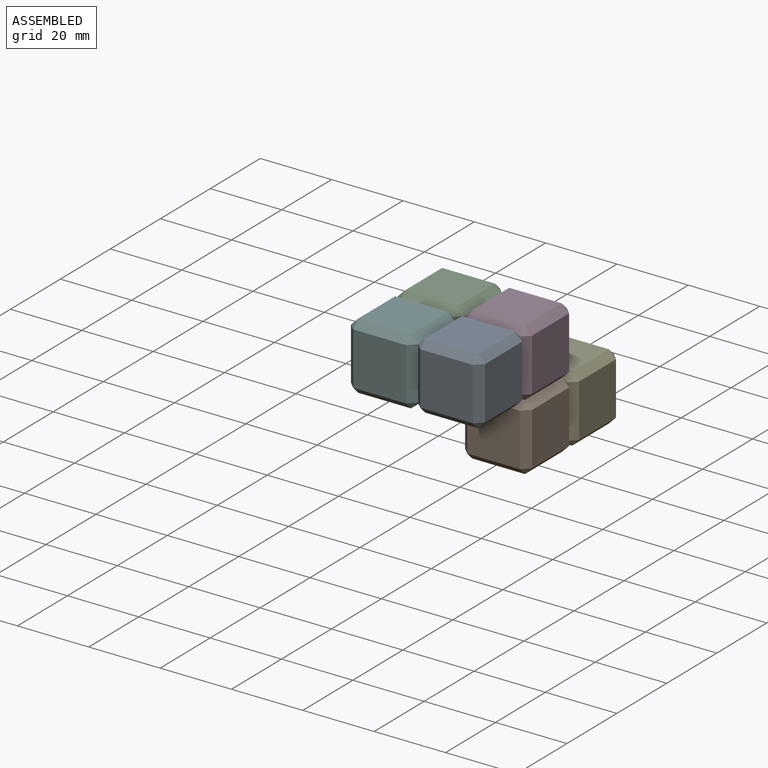
[diagram: assembled view]
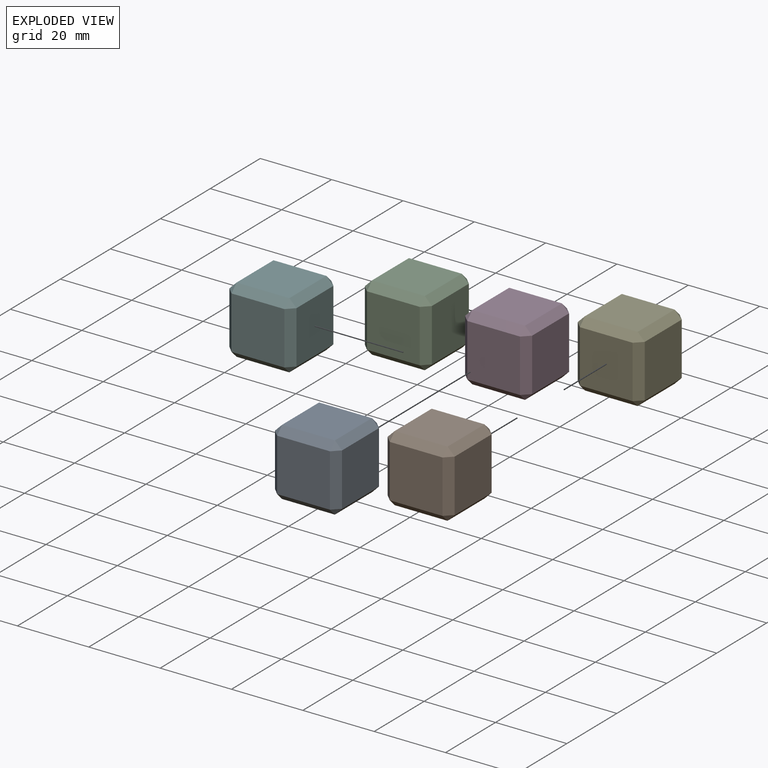
[diagram: exploded view]
GUIDED TOUR — MATED ASSEMBLY (Onshape document 1e6ece0ad8aaabeab4fbfc36, AutoMate assembly 1e6ece0ad8aaabeab4fbfc36_172a17a7f35fd7510ea4f16c_47e20f9b60a72859f4c61cba_default)

This assembly has 6 components, labeled P0..P5 below (a component is one placed occurrence of a part; the same part can appear more than once), held together by 10 mates. A mate is a constraint between two components; its type names the relative motion it leaves free:
  FASTENED — locks the two components together rigidly (no relative motion),
  PLANAR — leaves sliding in the plane through the listed point (normal = the listed direction) and rotation about that normal free.
Axis/direction vectors are unit vectors and 'through' points are millimeter coordinates, both in the assembly's world frame.

MATES
  1. FASTENED "Fastened 4": P1 <-> P4, direction (-1.000, 0.000, 0.000) through (-13.04, 22.35, -11.38) mm
  2. PLANAR "Planar 2": P3 <-> P0, direction (0.000, -1.000, 0.000) through (-13.04, 3.56, 14.81) mm
  3. PLANAR "Planar 5": P3 <-> P1, direction (0.000, 0.000, -1.000) through (-13.04, 12.96, 5.41) mm
  4. FASTENED "Fastened 5": P3 <-> P1, direction (0.000, 1.000, 0.000) through (-20.44, 12.96, 5.41) mm
  5. PLANAR "Planar 1": P5 <-> P0, direction (1.000, 0.000, 0.000) through (-22.44, -5.84, 14.81) mm
  6. FASTENED "Fastened 1": P0 <-> P5, direction (0.000, 1.000, 0.000) through (-22.44, -5.84, 22.21) mm
  7. FASTENED "Fastened 3": P5 <-> P2, direction (1.000, 0.000, 0.000) through (-31.84, 3.56, 22.21) mm
  8. PLANAR "Planar 4": P1 <-> P4, direction (0.000, 1.000, 0.000) through (-13.04, 22.35, -3.98) mm
  9. FASTENED "Fastened 2": P0 <-> P3, direction (1.000, 0.000, 0.000) through (-13.04, 3.56, 22.21) mm
  10. PLANAR "Planar 3": P2 <-> P5, direction (0.000, -1.000, 0.000) through (-31.84, 3.56, 14.81) mm

ASSEMBLY ORDER
  1. P3 — the base component [order verified]
  2. P1 [order verified]
  3. P2 [order verified]
  4. P4 [order verified]
  5. P0 [order verified]
  6. P5 [order verified]
Order-tag legend:
  [order verified] — this step's position reverses a verified removal order: the component was checked to insert without passing through the ones already placed.

Of the 6 components, 6 carry the full construction recipe — the FeatureScript program that regenerates the part's solid from scratch; the rest are supplied as boundary geometry only.
Each toured component is shown spotlighted twice — in the assembled view, then in the exploded view, where a leader line traces a displaced component back to its assembled socket (saturated green if recipe-attached, orange if geometry-only; every other component desaturated gray) — followed by its recipe or geometry summary and the mates that hold it.
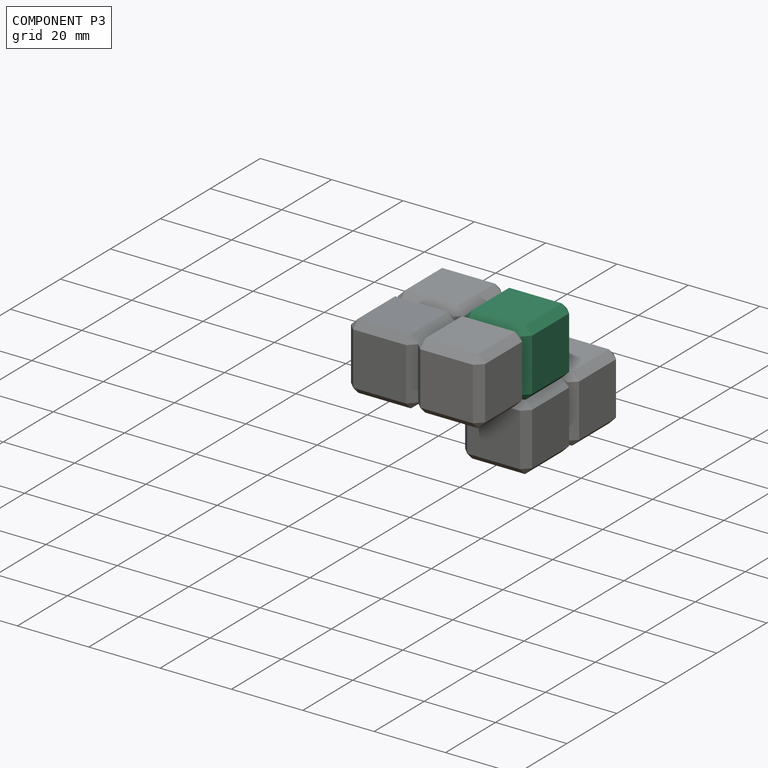
[diagram: component P3 — assembled]
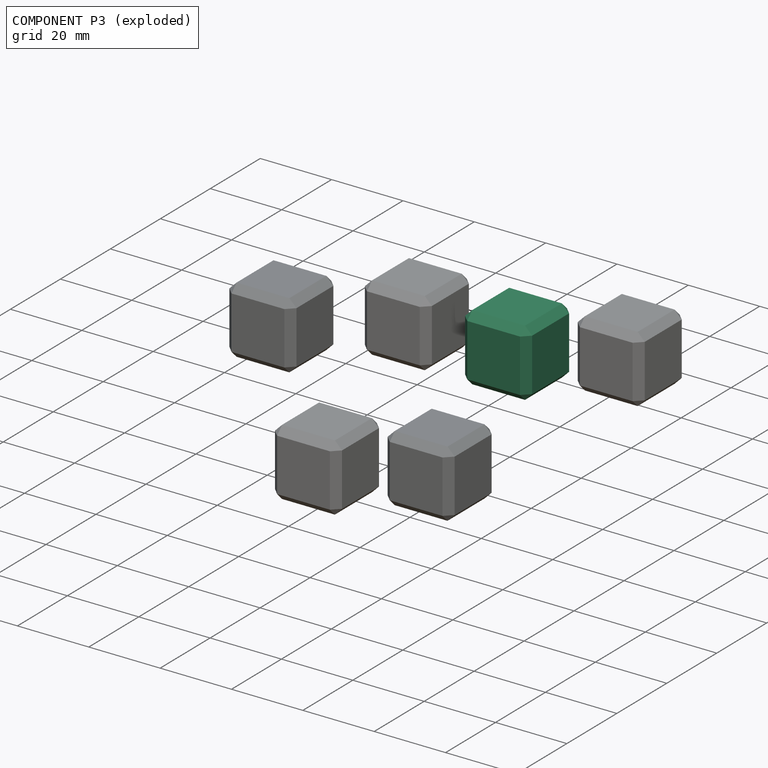
[diagram: component P3 — exploded]
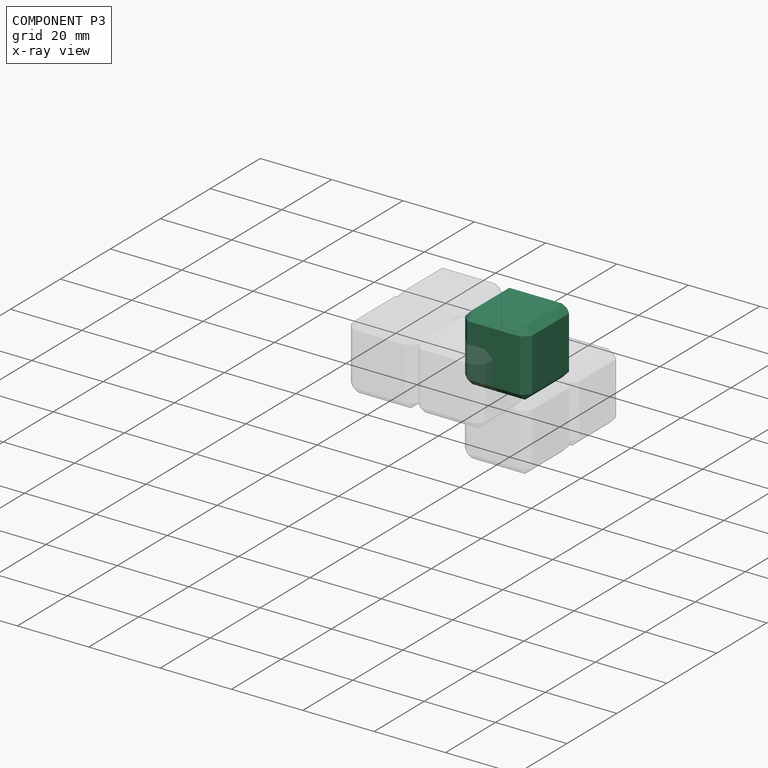
[diagram: component P3 — x-ray view]
COMPONENT P3 — same part as P0 (CADFS 00260289); its construction recipe is shown at P0.
Held by: PLANAR mate "Planar 2" to P0; PLANAR mate "Planar 5" to P1; FASTENED mate "Fastened 5" to P1; FASTENED mate "Fastened 2" to P0.
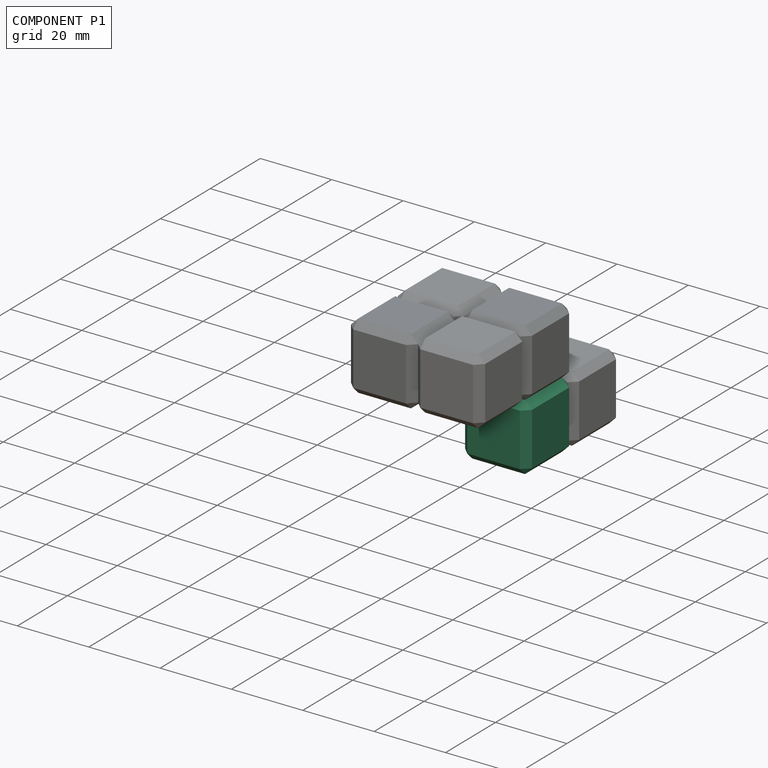
[diagram: component P1 — assembled]
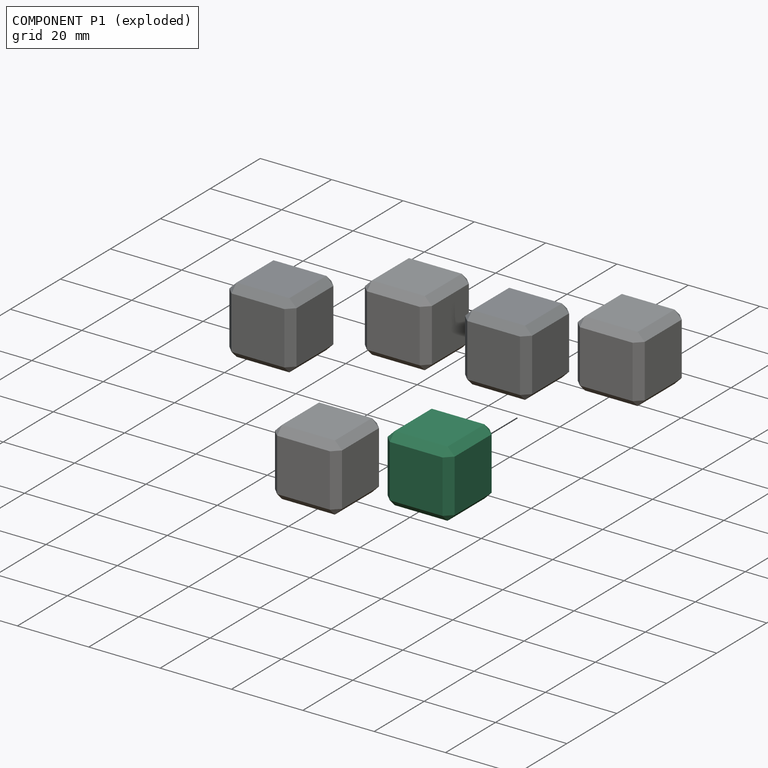
[diagram: component P1 — exploded]
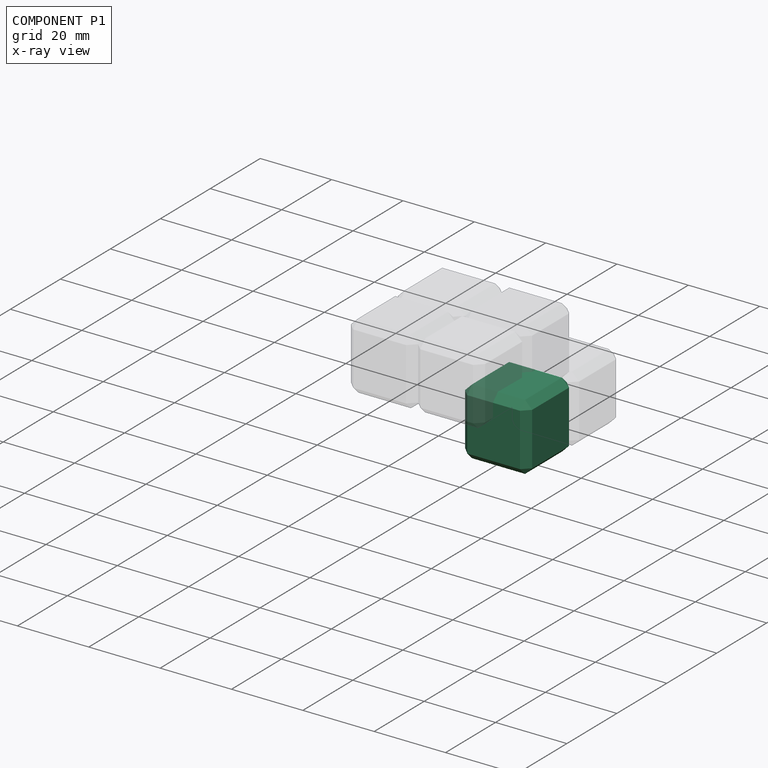
[diagram: component P1 — x-ray view]
COMPONENT P1 — same part as P0 (CADFS 00260289); its construction recipe is shown at P0.
Held by: FASTENED mate "Fastened 4" to P4; PLANAR mate "Planar 5" to P3; FASTENED mate "Fastened 5" to P3; PLANAR mate "Planar 4" to P4.
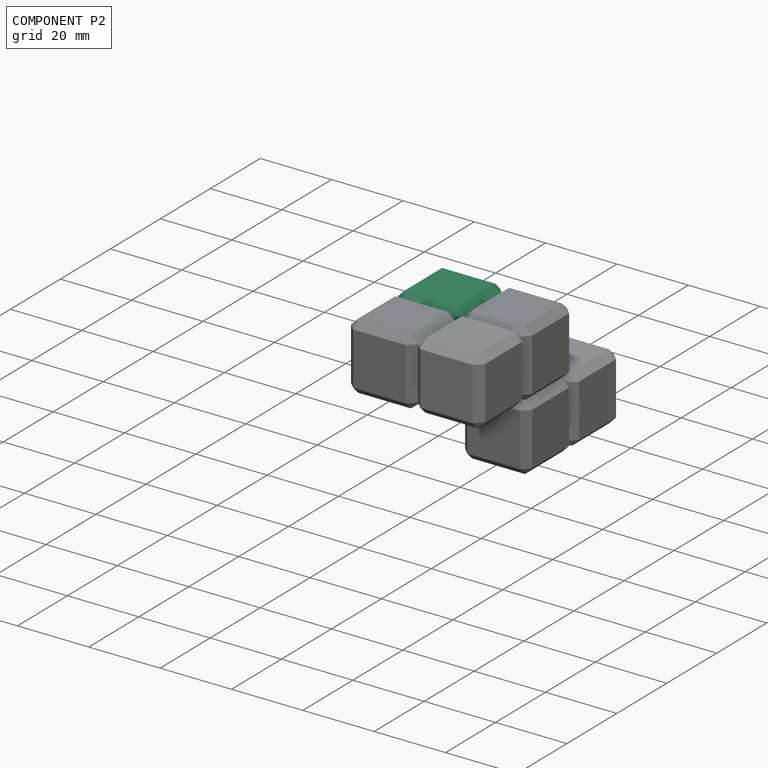
[diagram: component P2 — assembled]
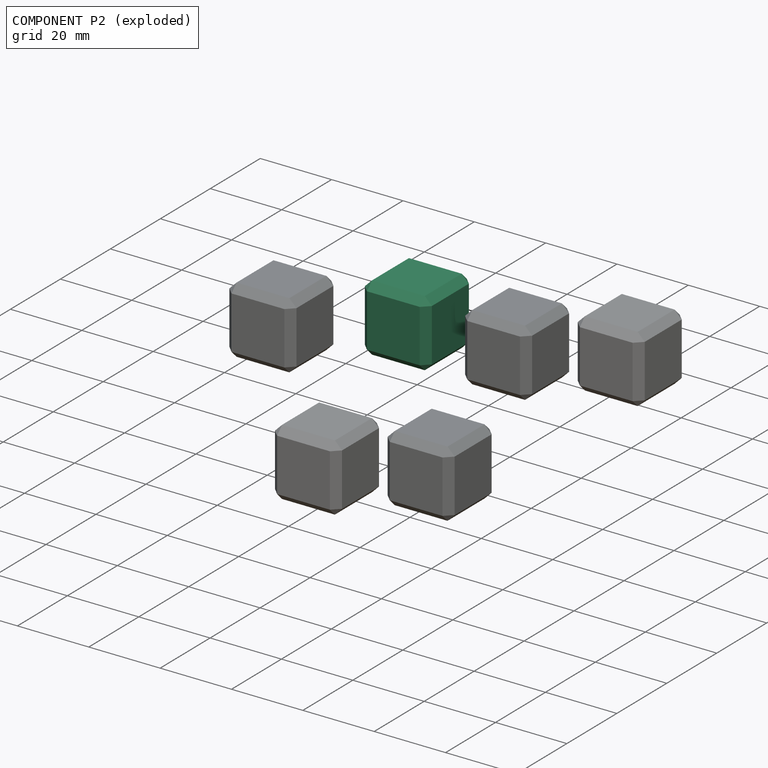
[diagram: component P2 — exploded]
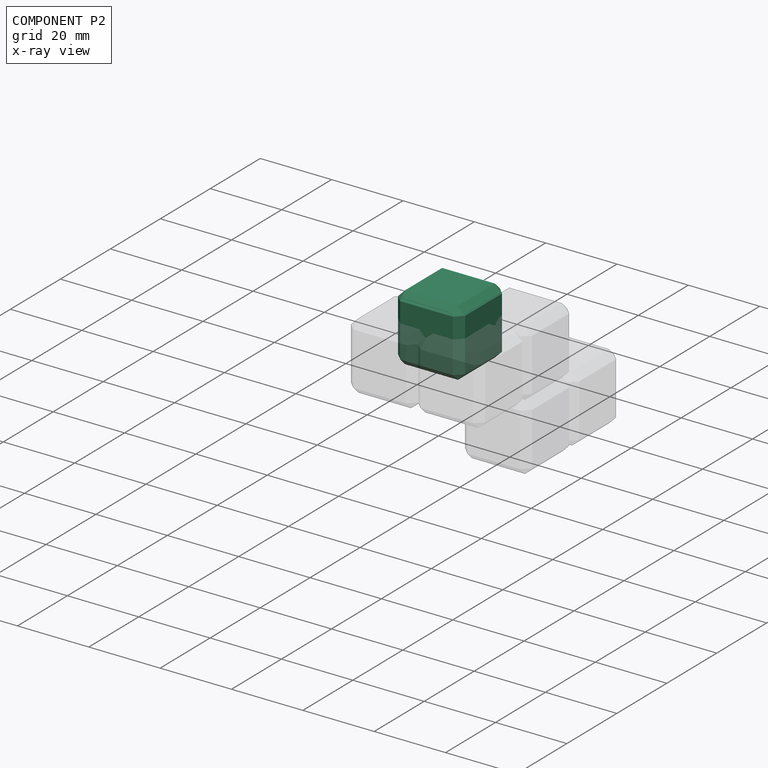
[diagram: component P2 — x-ray view]
COMPONENT P2 — same part as P0 (CADFS 00260289); its construction recipe is shown at P0.
Held by: FASTENED mate "Fastened 3" to P5; PLANAR mate "Planar 3" to P5.
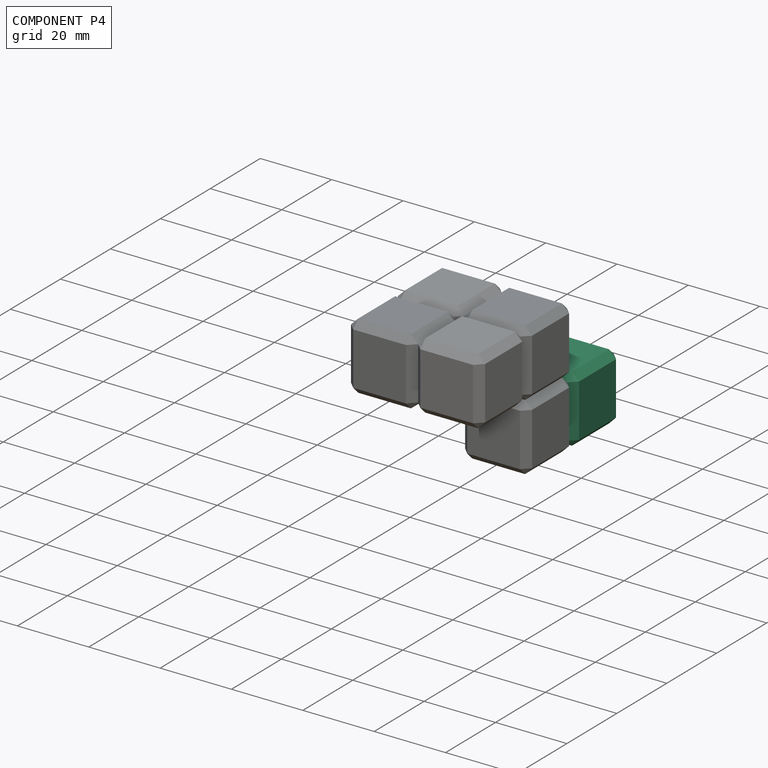
[diagram: component P4 — assembled]
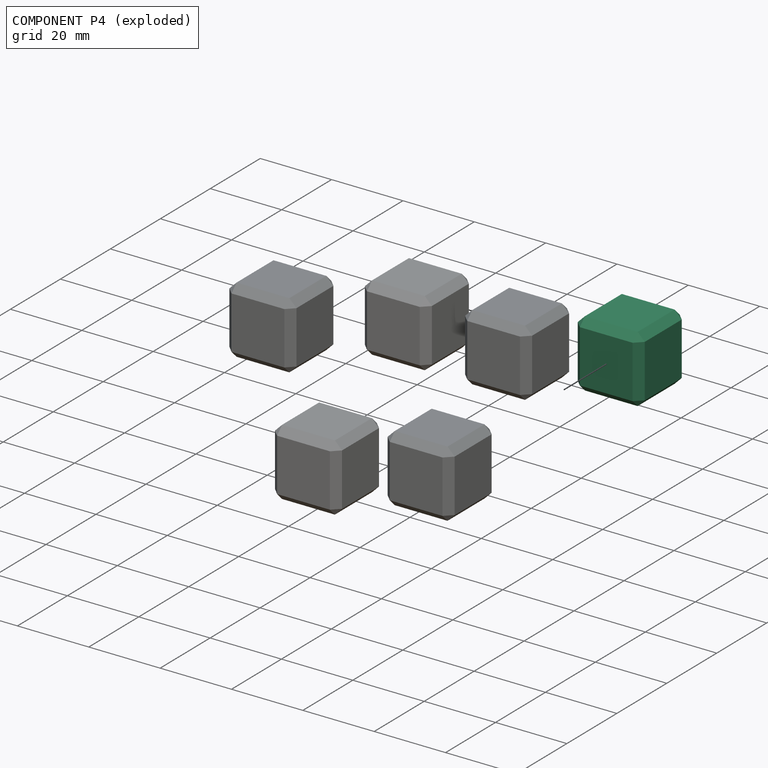
[diagram: component P4 — exploded]
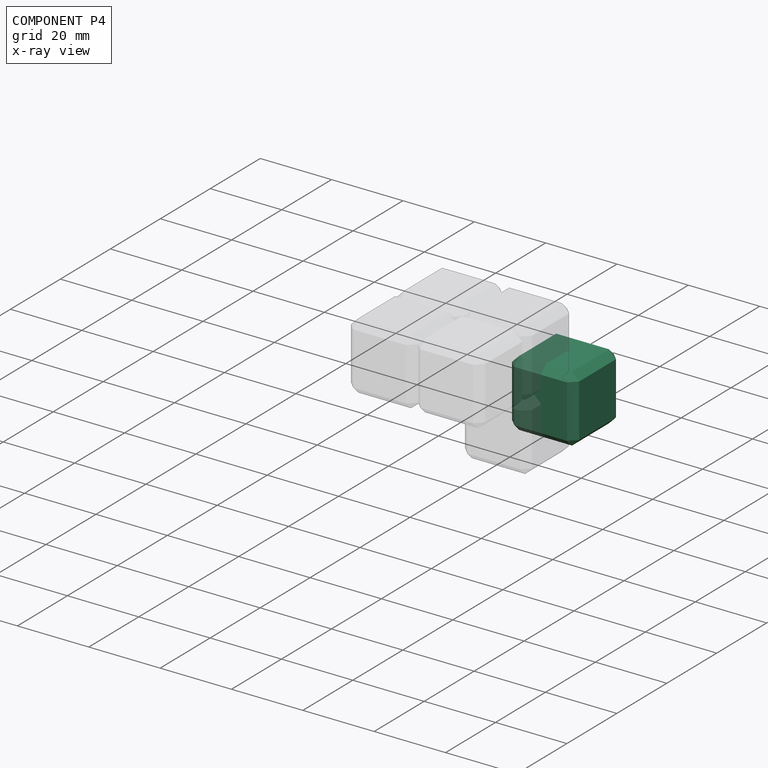
[diagram: component P4 — x-ray view]
COMPONENT P4 — same part as P0 (CADFS 00260289); its construction recipe is shown at P0.
Held by: FASTENED mate "Fastened 4" to P1; PLANAR mate "Planar 4" to P1.
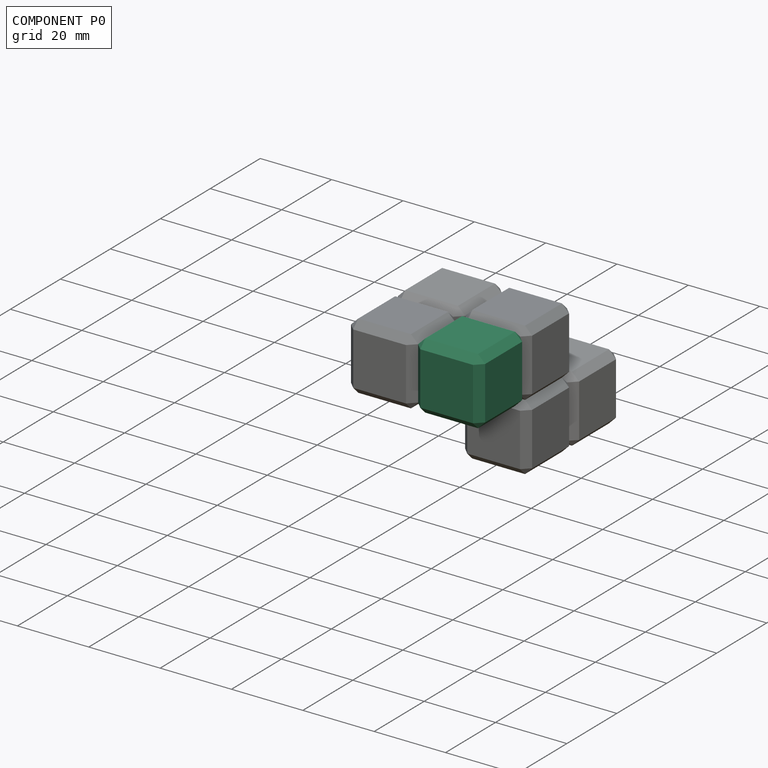
[diagram: component P0 — assembled]
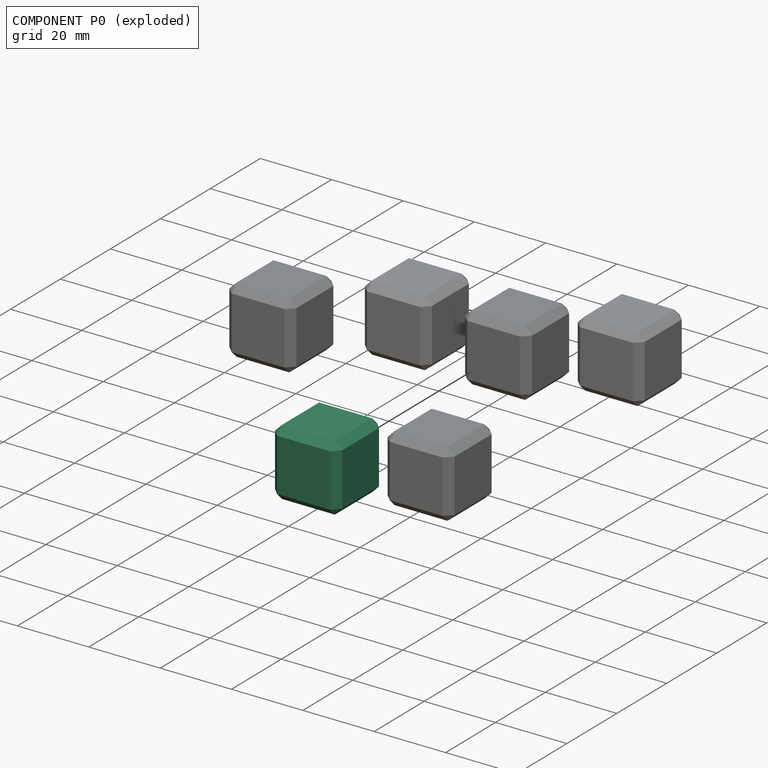
[diagram: component P0 — exploded]
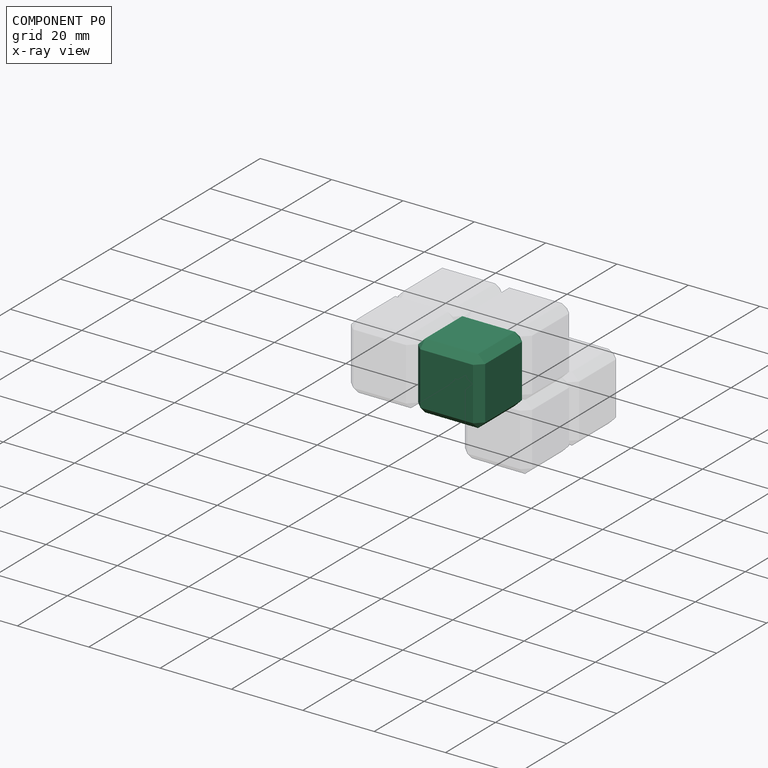
[diagram: component P0 — x-ray view]
COMPONENT P0 — recipe-attached (CADFS 00260289, mesh-verified: the recipe's output STEP matches this component's geometry to below the mesh-comparison resolution (tessellation chordal tolerance ~0.0488 mm)).
Held by: PLANAR mate "Planar 2" to P3; PLANAR mate "Planar 1" to P5; FASTENED mate "Fastened 1" to P5; FASTENED mate "Fastened 2" to P3.
Construction recipe (FeatureScript — the CAD program that rebuilds this solid; sketch coordinates are in the units given by the * unit suffixes, e.g. mm):

FeatureScript 1511;
import(path : "onshape/std/geometry.fs", version : "1511.0");
import(path : "onshape/std/common.fs", version : "1511.0");
const mm = millimeter;
const VERTEX = EntityType.VERTEX;
const EDGE = EntityType.EDGE;
const FACE = EntityType.FACE;
const BODY = EntityType.BODY;
function v(x, y){return vector(x, y);}
function OD(order){return orderDisambiguation(order);}
function OSD(set){return originalSetDisambiguation(set);}
function TD(topology){return topologyDisambiguation(topology);}
function TDD(query){return trueDependencyDisambiguation(query);}
function sQuery(a, b, c) {return sketchEntityQuery(a, b, c);}

annotation { "Feature Type Name" : "Feature", "Feature Type Description" : "" }
export const myFeature = defineFeature(function(context is Context, id is Id, definition is map)
    precondition{}
    {
        {
            var Q0;
            Q0=qCreatedBy(makeId("Top.planeOp"),FACE);
            var sketch = newSketch(context, id + "F0", { "sketchPlane" : qUnion([Q0])});
            skLineSegment(sketch, "E0.bottom", {"start": v(-42.6, -27.1) * mm, "end": v(-23.8, -27.1) * mm});
            skLineSegment(sketch, "E0.top", {"start": v(-42.6, -8.3) * mm, "end": v(-23.8, -8.3) * mm});
            skLineSegment(sketch, "E0.left", {"start": v(-42.6, -27.1) * mm, "end": v(-42.6, -8.3) * mm});
            skLineSegment(sketch, "E0.right", {"start": v(-23.8, -27.1) * mm, "end": v(-23.8, -8.3) * mm});
            skSolve(sketch);
        }
        {
            var Q0;
            Q0=makeQuery(id+"F0.imprint","IMPRINT",FACE,{"disambiguationData":[TD([[makeQuery(id+"F0.imprint","IMPRINT",EDGE,{"derivedFrom":sQuery(id+"F0.wireOp",EDGE,"E0.bottom")}),1.0]])]});
            extrude(context, id + "F1", {"entities" : qUnion([Q0]), "depth" : 18.8 * mm});
        }
        {
            var Q0;
            Q0=makeQuery(id+"F1.opExtrude","CAP_EDGE",EDGE,{"disambiguationData":[OSD([sQuery(id+"F0.wireOp",EDGE,"E0.left")])],"isStart":false});
            var Q1;
            Q1=makeQuery(id+"F1.opExtrude","CAP_EDGE",EDGE,{"disambiguationData":[OSD([sQuery(id+"F0.wireOp",EDGE,"E0.bottom")])],"isStart":false});
            var Q2;
            Q2=makeQuery(id+"F1.opExtrude","SWEPT_EDGE",EDGE,{"disambiguationData":[OSD([sQuery(id+"F0.wireOp",EDGE,"E0.bottom"),sQuery(id+"F0.wireOp",EDGE,"E0.left")])]});
            var Q3;
            Q3=makeQuery(id+"F1.opExtrude","SWEPT_EDGE",EDGE,{"disambiguationData":[OSD([sQuery(id+"F0.wireOp",EDGE,"E0.top"),sQuery(id+"F0.wireOp",EDGE,"E0.left")])]});
            var Q4;
            Q4=makeQuery(id+"F1.opExtrude","CAP_EDGE",EDGE,{"disambiguationData":[OSD([sQuery(id+"F0.wireOp",EDGE,"E0.left")])],"isStart":true});
            var Q5;
            Q5=makeQuery(id+"F1.opExtrude","CAP_EDGE",EDGE,{"disambiguationData":[OSD([sQuery(id+"F0.wireOp",EDGE,"E0.bottom")])],"isStart":true});
            var Q6;
            Q6=makeQuery(id+"F1.opExtrude","SWEPT_EDGE",EDGE,{"disambiguationData":[OSD([sQuery(id+"F0.wireOp",EDGE,"E0.bottom"),sQuery(id+"F0.wireOp",EDGE,"E0.right")])]});
            var Q7;
            Q7=makeQuery(id+"F1.opExtrude","CAP_EDGE",EDGE,{"disambiguationData":[OSD([sQuery(id+"F0.wireOp",EDGE,"E0.top")])],"isStart":false});
            var Q8;
            Q8=makeQuery(id+"F1.opExtrude","SWEPT_FACE",FACE,{"disambiguationData":[OSD([sQuery(id+"F0.wireOp",EDGE,"E0.right")])]});
            var Q9;
            Q9=makeQuery(id+"F1.opExtrude","CAP_EDGE",EDGE,{"disambiguationData":[OSD([sQuery(id+"F0.wireOp",EDGE,"E0.top")])],"isStart":true});
            chamfer(context, id + "F2", {"entities" : qUnion([Q0, Q1, Q2, Q3, Q4, Q5, Q6, Q7, Q8, Q9]), "chamferType" : ChamferType.OFFSET_ANGLE, "width" : 2 * mm, "oppositeDirection" : false, "angle" : 45 * degree, "tangentPropagation" : true});
        }
    });
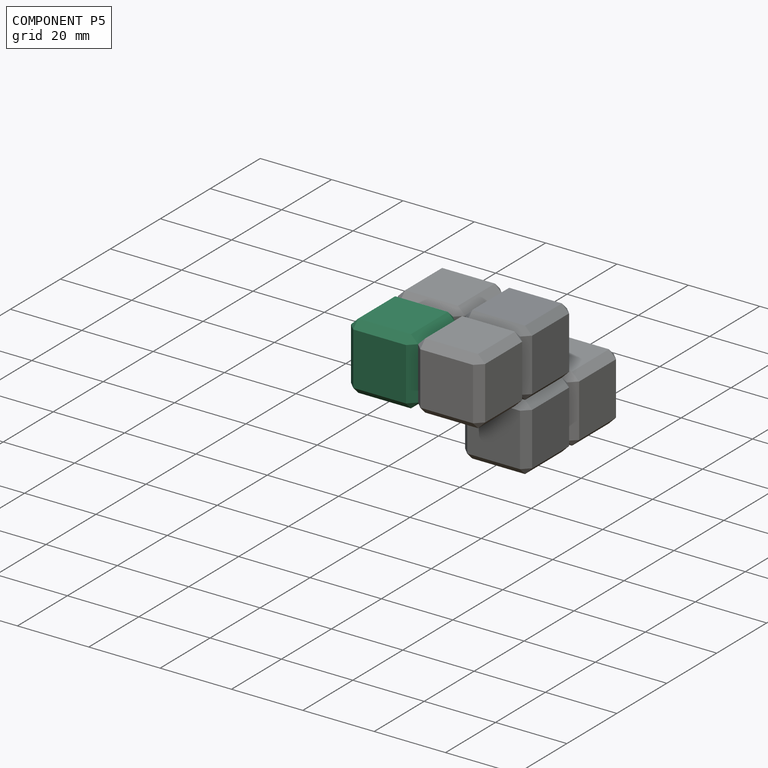
[diagram: component P5 — assembled]
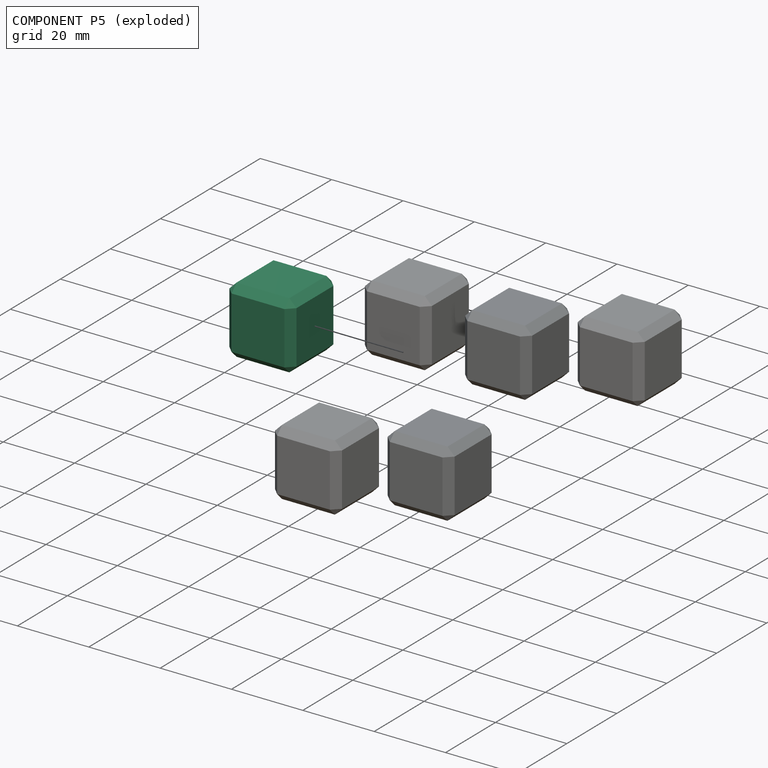
[diagram: component P5 — exploded]
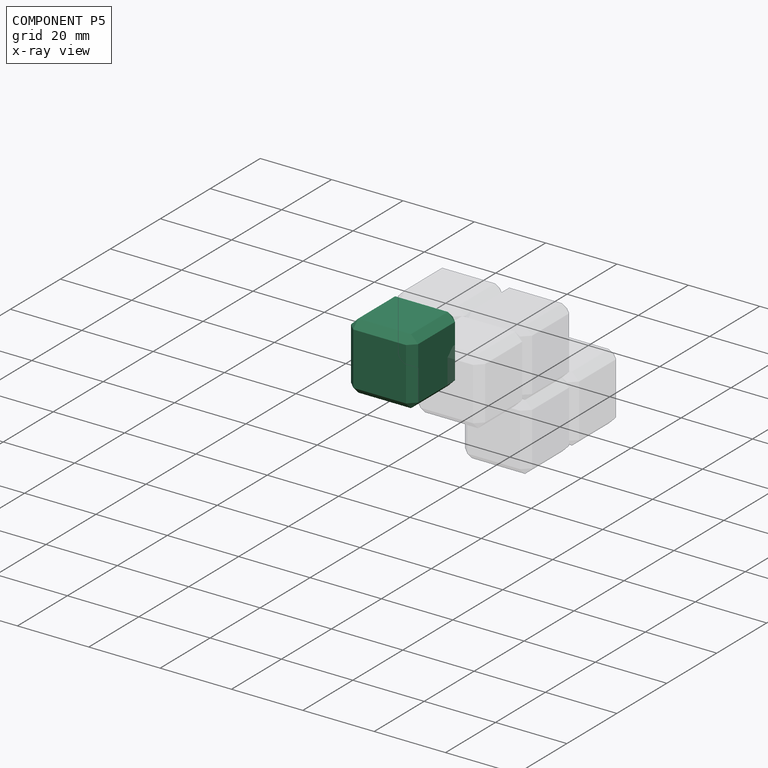
[diagram: component P5 — x-ray view]
COMPONENT P5 — same part as P0 (CADFS 00260289); its construction recipe is shown at P0.
Held by: PLANAR mate "Planar 1" to P0; FASTENED mate "Fastened 1" to P0; FASTENED mate "Fastened 3" to P2; PLANAR mate "Planar 3" to P2.
PROVENANCE & LICENSES
Assembly (occurrences, transforms, mates, per-part STEP geometry): AutoMate dataset, Zenodo record 7776208, CC0.
Construction recipes: CADFS (HuggingFace VladPyatov/CADFS, CC-BY-4.0, layered over the ABC dataset), FeatureScript reconstruction programs keyed by ABC model id.
Join: ABC meta listings map ABC model id -> Onshape documentId; within a shared document, parts are matched by geometric signature (bounding-box dims + volume at 0.1% relative tolerance, exact B-rep face/solid counts).
Verification: 6 of this assembly's 6 components carry a recipe attachment, and every attachment is mesh-verified: the CADFS STEP and the AutoMate member STEP were compared as meshes in their shared local frame (symmetric sampled-point-to-mesh distance); worst across the 6 attachments: below the mesh-comparison resolution (tessellation chordal tolerance ~0.0488 mm) on a 33 mm part.
Renders: orthographic iso camera (az 35 / el 25); the floor grid conveys scale (grid pitch printed in each image; no ruler). In the exploded view each component is displaced by its stored offset vector: the offsets alone carry the explosion direction (mate normal/axis signs are not orientation cues and do not encode it), and separation distances are assigned per mate-chain, not proportionally to assembly-order depth.
